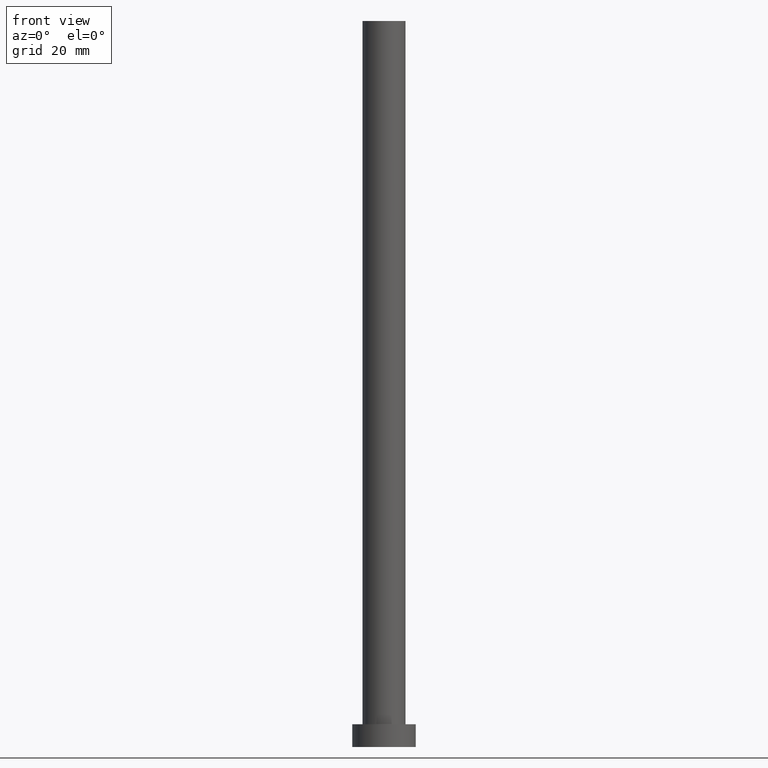
[diagram: clean part render]
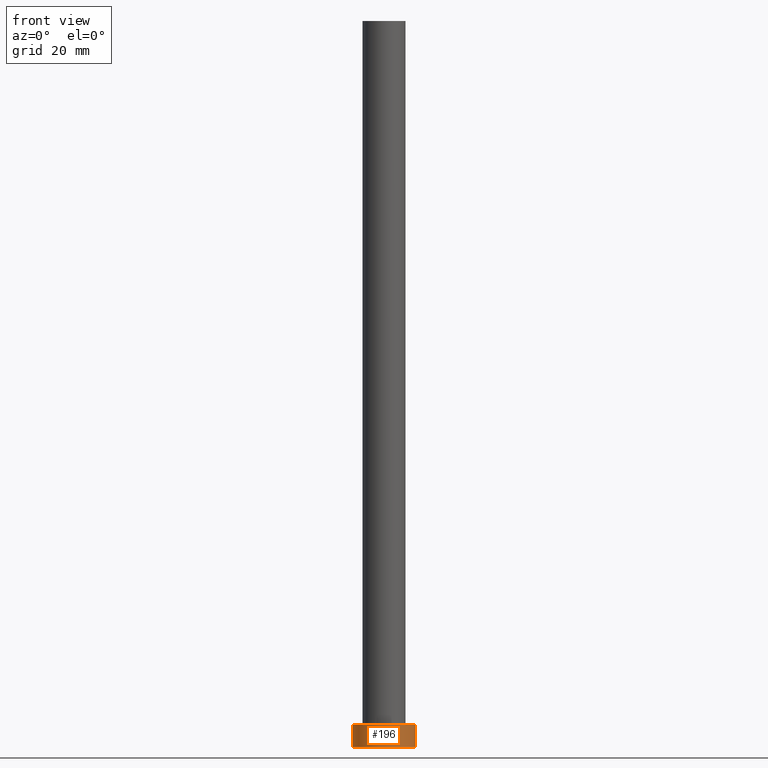
[diagram: same view with one face highlighted and labeled with its STEP entity id]
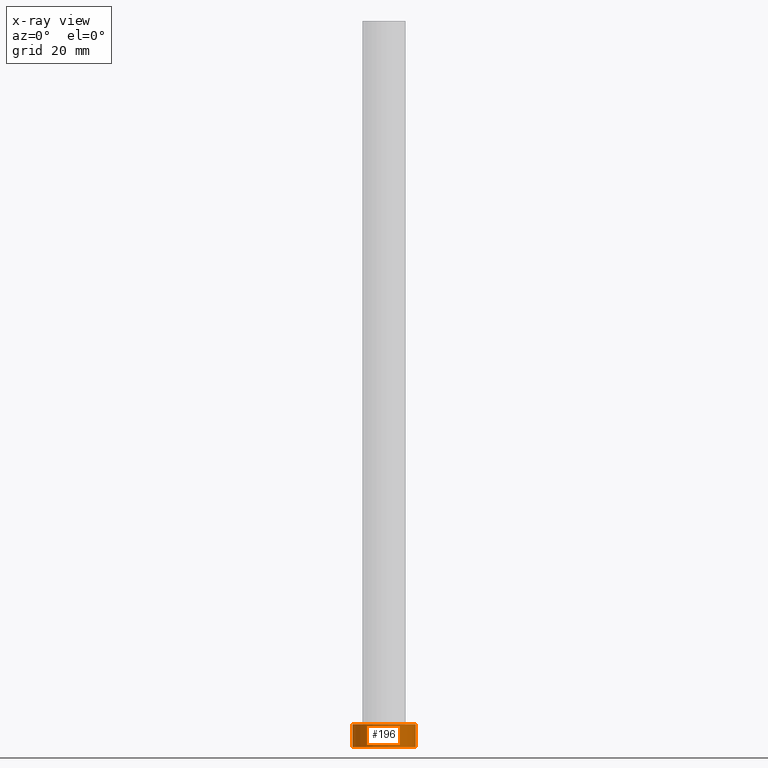
[diagram: x-ray of the same camera — body ghosted, the highlighted face saturated]
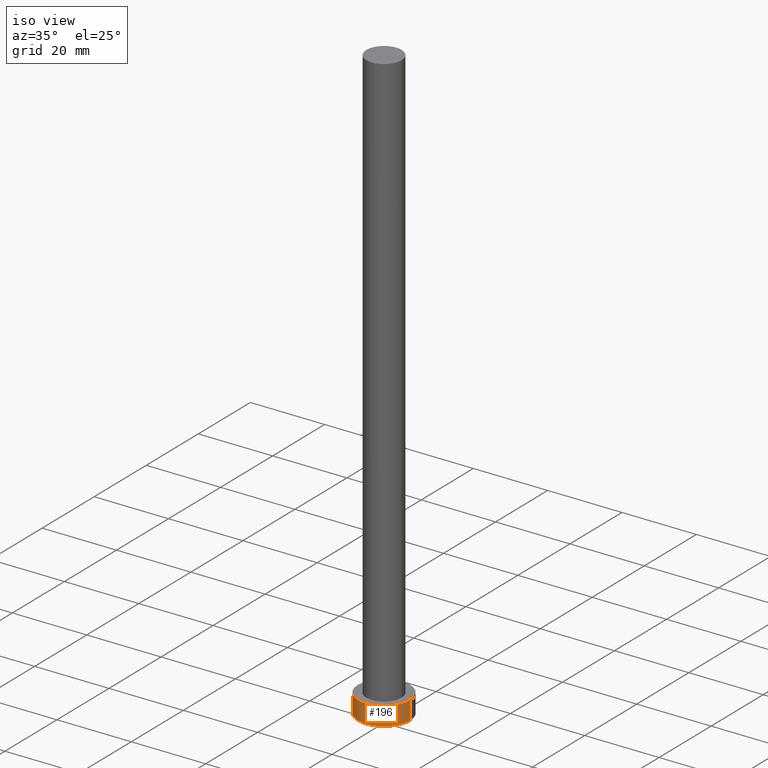
[diagram: same view with one face highlighted and labeled with its STEP entity id]
A machine part, front view. The second image highlights one B-rep face of the part: STEP entity #196.
The next image is the same camera in x-ray: the body ghosted, the highlighted face saturated — about 0% of this face is hidden behind the body in this view.
A second angle (iso view) of the same face is appended — the face is thin or edge-on in the first view.
In plain terms, the highlighted cylindrical surface (edge-blend (fillet) strip) has radius 7 mm, axis along (-0, -0, -1).
Its self-contained STEP definition (entity closure, byte-faithful):
#1 = DIRECTION ( 'NONE',  ( -0.000000000000000000, -0.000000000000000000, -1.000000000000000000 ) ) ;
#4 = AXIS2_PLACEMENT_3D ( 'NONE', #175, #113, #40 ) ;
#12 = VERTEX_POINT ( 'NONE', #219 ) ;
#24 = AXIS2_PLACEMENT_3D ( 'NONE', #139, #62, #221 ) ;
#40 = DIRECTION ( 'NONE',  ( 1.000000000000000000, 0.000000000000000000, 0.000000000000000000 ) ) ;
#55 = ORIENTED_EDGE ( 'NONE', *, *, #71, .T. ) ;
#56 = EDGE_CURVE ( 'NONE', #192, #12, #229, .T. ) ;
#60 = AXIS2_PLACEMENT_3D ( 'NONE', #69, #99, #63 ) ;
#62 = DIRECTION ( 'NONE',  ( 0.000000000000000000, 0.000000000000000000, 1.000000000000000000 ) ) ;
#63 = DIRECTION ( 'NONE',  ( -1.000000000000000000, 0.000000000000000000, 0.000000000000000000 ) ) ;
#65 = CARTESIAN_POINT ( 'NONE',  ( 7.000000000000000000, 8.572527594031473190E-16, 0.000000000000000000 ) ) ;
#69 = CARTESIAN_POINT ( 'NONE',  ( 0.000000000000000000, 0.000000000000000000, 5.000000000000000000 ) ) ;
#71 = EDGE_CURVE ( 'NONE', #244, #149, #184, .T. ) ;
#73 = LINE ( 'NONE', #211, #75 ) ;
#75 = VECTOR ( 'NONE', #88, 1000.000000000000000 ) ;
#77 = EDGE_LOOP ( 'NONE', ( #129, #91, #231, #55 ) ) ;
#86 = FACE_OUTER_BOUND ( 'NONE', #77, .T. ) ;
#88 = DIRECTION ( 'NONE',  ( -0.000000000000000000, -0.000000000000000000, -1.000000000000000000 ) ) ;
#91 = ORIENTED_EDGE ( 'NONE', *, *, #56, .F. ) ;
#99 = DIRECTION ( 'NONE',  ( -0.000000000000000000, -0.000000000000000000, -1.000000000000000000 ) ) ;
#113 = DIRECTION ( 'NONE',  ( 0.000000000000000000, 0.000000000000000000, 1.000000000000000000 ) ) ;
#122 = CYLINDRICAL_SURFACE ( 'NONE', #60, 7.000000000000000000 ) ;
#126 = VECTOR ( 'NONE', #1, 1000.000000000000000 ) ;
#127 = EDGE_CURVE ( 'NONE', #12, #149, #73, .T. ) ;
#129 = ORIENTED_EDGE ( 'NONE', *, *, #127, .F. ) ;
#132 = EDGE_CURVE ( 'NONE', #192, #244, #182, .T. ) ;
#139 = CARTESIAN_POINT ( 'NONE',  ( 0.000000000000000000, 0.000000000000000000, 5.000000000000000000 ) ) ;
#141 = CARTESIAN_POINT ( 'NONE',  ( -7.000000000000000000, 0.000000000000000000, 5.000000000000000000 ) ) ;
#149 = VERTEX_POINT ( 'NONE', #65 ) ;
#175 = CARTESIAN_POINT ( 'NONE',  ( 0.000000000000000000, 0.000000000000000000, 0.000000000000000000 ) ) ;
#176 = CARTESIAN_POINT ( 'NONE',  ( -7.000000000000000000, 0.000000000000000000, 0.000000000000000000 ) ) ;
#182 = LINE ( 'NONE', #141, #126 ) ;
#184 = CIRCLE ( 'NONE', #4, 7.000000000000000000 ) ;
#192 = VERTEX_POINT ( 'NONE', #204 ) ;
#196 = ADVANCED_FACE ( 'NONE', ( #86 ), #122, .T. ) ;
#204 = CARTESIAN_POINT ( 'NONE',  ( -7.000000000000000000, 0.000000000000000000, 5.000000000000000000 ) ) ;
#211 = CARTESIAN_POINT ( 'NONE',  ( 7.000000000000000000, 8.572527594031473190E-16, 5.000000000000000000 ) ) ;
#219 = CARTESIAN_POINT ( 'NONE',  ( 7.000000000000000000, 8.572527594031473190E-16, 5.000000000000000000 ) ) ;
#221 = DIRECTION ( 'NONE',  ( 1.000000000000000000, 0.000000000000000000, 0.000000000000000000 ) ) ;
#229 = CIRCLE ( 'NONE', #24, 7.000000000000000000 ) ;
#231 = ORIENTED_EDGE ( 'NONE', *, *, #132, .T. ) ;
#244 = VERTEX_POINT ( 'NONE', #176 ) ;